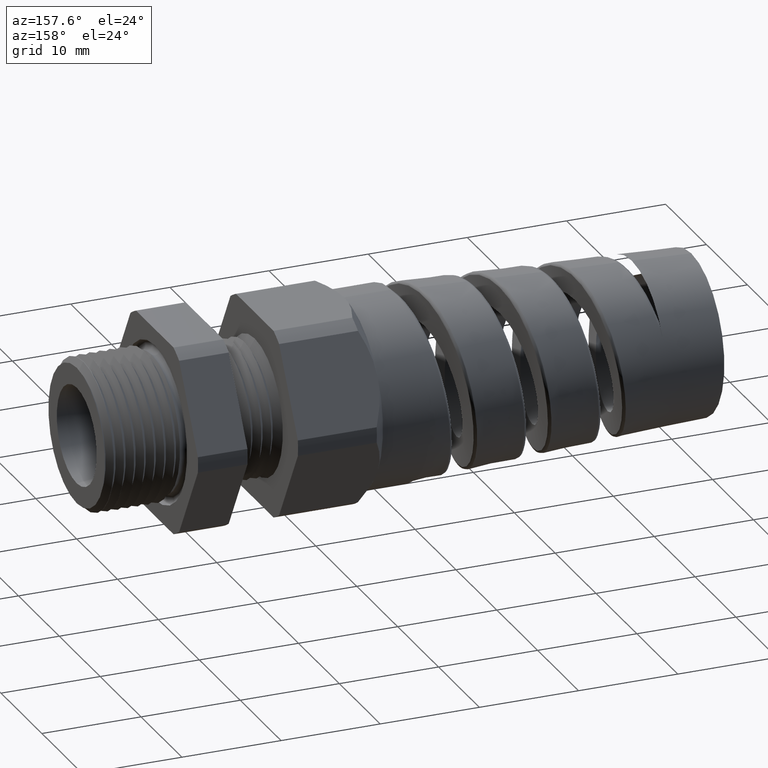
[diagram: clean part render]
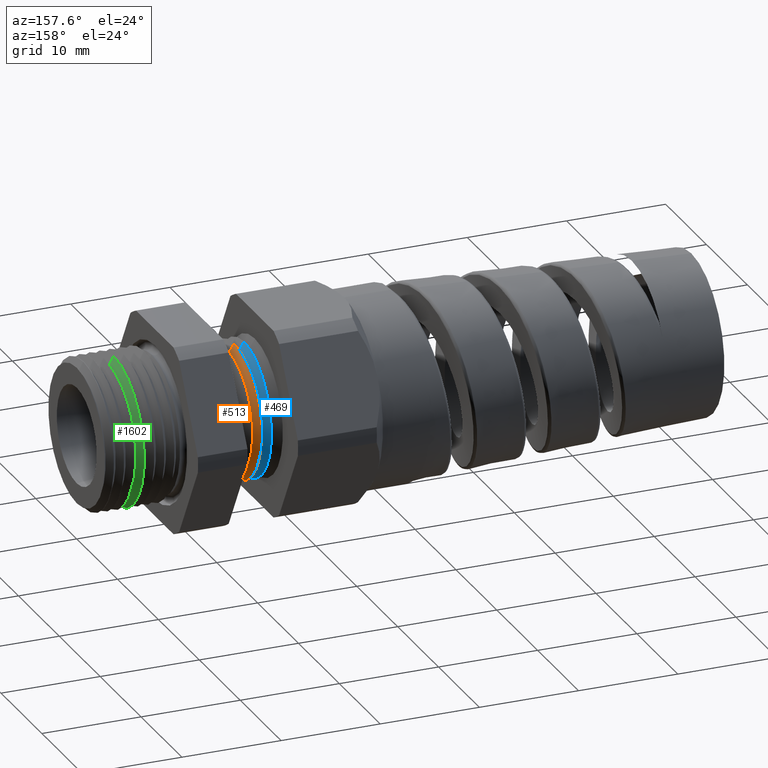
[diagram: same view with three faces highlighted in distinct colors, each labeled with its STEP entity id]
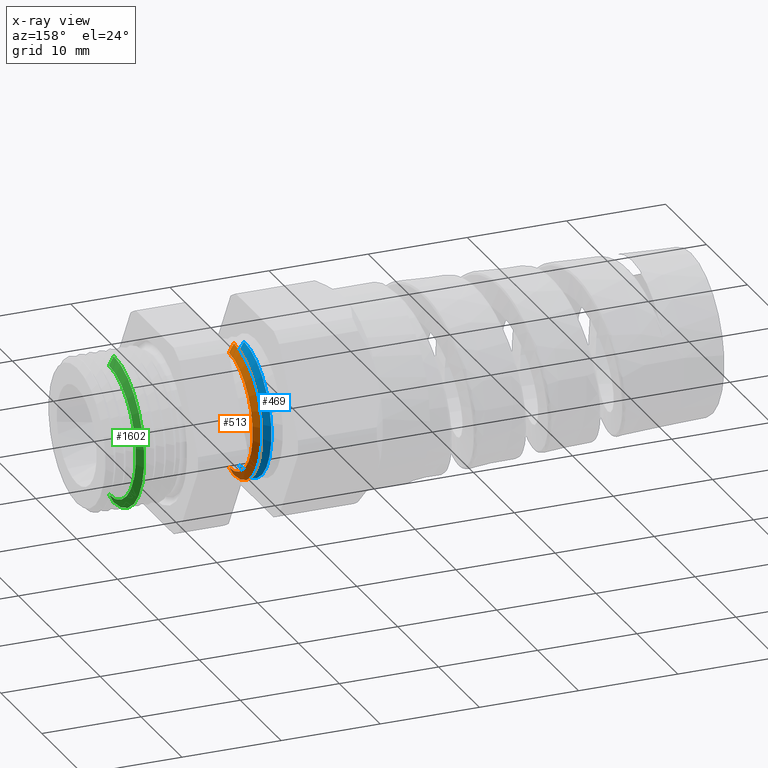
[diagram: x-ray of the same camera — body ghosted, the three highlighted faces saturated]
A machine part, auxiliary view with three faces highlighted in distinct colors.
The next image is the same camera in x-ray (body ghosted, the three faces saturated) — at least one of them is partly hidden behind the body in this view.
Their STEP definitions:

[orange] entity #513 — the highlighted conical surface has half-angle 60 deg.
#409 = EDGE_LOOP ( 'NONE', ( #514, #515, #475, #478 ) ) ;
#474 = VERTEX_POINT ( 'NONE', #5159 ) ;
#475 = ORIENTED_EDGE ( 'NONE', *, *, #476, .F. ) ;
#476 = EDGE_CURVE ( 'NONE', #477, #474, #5158, .T. ) ;
#477 = VERTEX_POINT ( 'NONE', #5153 ) ;
#478 = ORIENTED_EDGE ( 'NONE', *, *, #479, .F. ) ;
#479 = EDGE_CURVE ( 'NONE', #489, #477, #5152, .T. ) ;
#487 = EDGE_CURVE ( 'NONE', #488, #489, #5202, .T. ) ;
#488 = VERTEX_POINT ( 'NONE', #5193 ) ;
#489 = VERTEX_POINT ( 'NONE', #5192 ) ;
#513 = ADVANCED_FACE ( 'NONE', ( #5218 ), #5216, .T. ) ;
#514 = ORIENTED_EDGE ( 'NONE', *, *, #487, .F. ) ;
#515 = ORIENTED_EDGE ( 'NONE', *, *, #516, .T. ) ;
#516 = EDGE_CURVE ( 'NONE', #488, #474, #5217, .T. ) ;
#5149 = DIRECTION ( 'NONE',  ( -0.4999999999999933900, 0.0000000000000000000, 0.8660254037844423700 ) ) ;
#5150 = VECTOR ( 'NONE', #5149, 39.37007874015748100 ) ;
#5151 = CARTESIAN_POINT ( 'NONE',  ( -0.6269291338582673200, 0.0000000000000000000, 0.2699999999999999600 ) ) ;
#5152 = LINE ( 'NONE', #5151, #5150 ) ;
#5153 = CARTESIAN_POINT ( 'NONE',  ( -0.6238351230906825600, 3.240917733528876400E-017, 0.2646410161513776400 ) ) ;
#5154 = DIRECTION ( 'NONE',  ( 0.0000000000000000000, 0.0000000000000000000, 1.000000000000000000 ) ) ;
#5155 = DIRECTION ( 'NONE',  ( -1.000000000000000000, 0.0000000000000000000, 0.0000000000000000000 ) ) ;
#5156 = CARTESIAN_POINT ( 'NONE',  ( -0.6238351230906825600, 0.0000000000000000000, 0.0000000000000000000 ) ) ;
#5157 = AXIS2_PLACEMENT_3D ( 'NONE', #5156, #5155, #5154 ) ;
#5158 = CIRCLE ( 'NONE', #5157, 0.2646410161513778100 ) ;
#5159 = CARTESIAN_POINT ( 'NONE',  ( -0.6238351230906825600, 0.0000000000000000000, -0.2646410161513776400 ) ) ;
#5192 = CARTESIAN_POINT ( 'NONE',  ( -0.6038351230906827700, 0.0000000000000000000, 0.2299999999999999800 ) ) ;
#5193 = CARTESIAN_POINT ( 'NONE',  ( -0.6038351230906827700, 3.028802685783895300E-017, -0.2299999999999999800 ) ) ;
#5194 = DIRECTION ( 'NONE',  ( 0.0000000000000000000, 0.0000000000000000000, -1.000000000000000000 ) ) ;
#5195 = DIRECTION ( 'NONE',  ( 1.000000000000000000, 0.0000000000000000000, 0.0000000000000000000 ) ) ;
#5196 = CARTESIAN_POINT ( 'NONE',  ( -0.6038351230906827700, 0.0000000000000000000, 0.0000000000000000000 ) ) ;
#5197 = AXIS2_PLACEMENT_3D ( 'NONE', #5196, #5195, #5194 ) ;
#5202 = CIRCLE ( 'NONE', #5197, 0.2299999999999999800 ) ;
#5209 = DIRECTION ( 'NONE',  ( -0.4999999999999933900, 1.060575238724911700E-016, -0.8660254037844423700 ) ) ;
#5210 = VECTOR ( 'NONE', #5209, 39.37007874015748100 ) ;
#5211 = CARTESIAN_POINT ( 'NONE',  ( -0.6269291338582673200, 3.306546357697853700E-017, -0.2699999999999999600 ) ) ;
#5212 = DIRECTION ( 'NONE',  ( 0.0000000000000000000, 0.0000000000000000000, 1.000000000000000000 ) ) ;
#5213 = DIRECTION ( 'NONE',  ( -1.000000000000000000, 0.0000000000000000000, 0.0000000000000000000 ) ) ;
#5214 = CARTESIAN_POINT ( 'NONE',  ( -0.6269291338582673200, 0.0000000000000000000, 0.0000000000000000000 ) ) ;
#5215 = AXIS2_PLACEMENT_3D ( 'NONE', #5214, #5213, #5212 ) ;
#5216 = CONICAL_SURFACE ( 'NONE', #5215, 0.2699999999999999600, 1.047197551196605400 ) ;
#5217 = LINE ( 'NONE', #5211, #5210 ) ;
#5218 = FACE_OUTER_BOUND ( 'NONE', #409, .T. ) ;

[blue] entity #469 — the highlighted conical surface has half-angle 60 deg.
#448 = EDGE_CURVE ( 'NONE', #449, #450, #5094, .T. ) ;
#449 = VERTEX_POINT ( 'NONE', #5089 ) ;
#450 = VERTEX_POINT ( 'NONE', #5088 ) ;
#469 = ADVANCED_FACE ( 'NONE', ( #5171 ), #5169, .T. ) ;
#493 = ORIENTED_EDGE ( 'NONE', *, *, #604, .T. ) ;
#503 = ORIENTED_EDGE ( 'NONE', *, *, #561, .F. ) ;
#548 = ORIENTED_EDGE ( 'NONE', *, *, #448, .F. ) ;
#559 = ORIENTED_EDGE ( 'NONE', *, *, #560, .F. ) ;
#560 = EDGE_CURVE ( 'NONE', #611, #610, #5319, .T. ) ;
#561 = EDGE_CURVE ( 'NONE', #450, #611, #5310, .T. ) ;
#599 = EDGE_LOOP ( 'NONE', ( #548, #493, #559, #503 ) ) ;
#604 = EDGE_CURVE ( 'NONE', #449, #610, #5470, .T. ) ;
#610 = VERTEX_POINT ( 'NONE', #5454 ) ;
#611 = VERTEX_POINT ( 'NONE', #5453 ) ;
#5088 = CARTESIAN_POINT ( 'NONE',  ( -0.6438351230906826900, 0.0000000000000000000, 0.2299999999999999800 ) ) ;
#5089 = CARTESIAN_POINT ( 'NONE',  ( -0.6438351230906826900, 3.028802685783895300E-017, -0.2299999999999999800 ) ) ;
#5090 = DIRECTION ( 'NONE',  ( 0.0000000000000000000, 0.0000000000000000000, -1.000000000000000000 ) ) ;
#5091 = DIRECTION ( 'NONE',  ( 1.000000000000000000, 0.0000000000000000000, 0.0000000000000000000 ) ) ;
#5092 = CARTESIAN_POINT ( 'NONE',  ( -0.6438351230906826900, 0.0000000000000000000, 0.0000000000000000000 ) ) ;
#5093 = AXIS2_PLACEMENT_3D ( 'NONE', #5092, #5091, #5090 ) ;
#5094 = CIRCLE ( 'NONE', #5093, 0.2299999999999999800 ) ;
#5165 = DIRECTION ( 'NONE',  ( 0.0000000000000000000, 0.0000000000000000000, 1.000000000000000000 ) ) ;
#5166 = DIRECTION ( 'NONE',  ( -1.000000000000000000, 0.0000000000000000000, 0.0000000000000000000 ) ) ;
#5167 = CARTESIAN_POINT ( 'NONE',  ( -0.6669291338582673500, 0.0000000000000000000, 0.0000000000000000000 ) ) ;
#5168 = AXIS2_PLACEMENT_3D ( 'NONE', #5167, #5166, #5165 ) ;
#5169 = CONICAL_SURFACE ( 'NONE', #5168, 0.2699999999999999600, 1.047197551196605400 ) ;
#5171 = FACE_OUTER_BOUND ( 'NONE', #599, .T. ) ;
#5307 = DIRECTION ( 'NONE',  ( -0.4999999999999933900, 0.0000000000000000000, 0.8660254037844423700 ) ) ;
#5308 = VECTOR ( 'NONE', #5307, 39.37007874015748100 ) ;
#5309 = CARTESIAN_POINT ( 'NONE',  ( -0.6669291338582673500, 0.0000000000000000000, 0.2699999999999999600 ) ) ;
#5310 = LINE ( 'NONE', #5309, #5308 ) ;
#5311 = DIRECTION ( 'NONE',  ( 0.0000000000000000000, 0.0000000000000000000, 1.000000000000000000 ) ) ;
#5312 = DIRECTION ( 'NONE',  ( -1.000000000000000000, 0.0000000000000000000, 0.0000000000000000000 ) ) ;
#5313 = CARTESIAN_POINT ( 'NONE',  ( -0.6638351230906824900, 0.0000000000000000000, 0.0000000000000000000 ) ) ;
#5314 = AXIS2_PLACEMENT_3D ( 'NONE', #5313, #5312, #5311 ) ;
#5319 = CIRCLE ( 'NONE', #5314, 0.2646410161513778100 ) ;
#5453 = CARTESIAN_POINT ( 'NONE',  ( -0.6638351230906824900, 3.240917733528876400E-017, 0.2646410161513776400 ) ) ;
#5454 = CARTESIAN_POINT ( 'NONE',  ( -0.6638351230906824900, 0.0000000000000000000, -0.2646410161513776400 ) ) ;
#5467 = DIRECTION ( 'NONE',  ( -0.4999999999999933900, 1.060575238724911700E-016, -0.8660254037844423700 ) ) ;
#5468 = VECTOR ( 'NONE', #5467, 39.37007874015748100 ) ;
#5469 = CARTESIAN_POINT ( 'NONE',  ( -0.6669291338582673500, 3.306546357697853700E-017, -0.2699999999999999600 ) ) ;
#5470 = LINE ( 'NONE', #5469, #5468 ) ;

[green] entity #1602 — the highlighted conical surface has half-angle 61.5 deg.
#89 = EDGE_LOOP ( 'NONE', ( #1590, #7768, #7765, #6775 ) ) ;
#1590 = ORIENTED_EDGE ( 'NONE', *, *, #1597, .F. ) ;
#1596 = VERTEX_POINT ( 'NONE', #7436 ) ;
#1597 = EDGE_CURVE ( 'NONE', #1601, #1596, #7435, .T. ) ;
#1601 = VERTEX_POINT ( 'NONE', #7485 ) ;
#1602 = ADVANCED_FACE ( 'NONE', ( #7484 ), #7481, .T. ) ;
#4230 = DIRECTION ( 'NONE',  ( -1.000000000000000000, 0.0000000000000000000, 0.0000000000000000000 ) ) ;
#4231 = CARTESIAN_POINT ( 'NONE',  ( -0.1467523337684278300, 0.0000000000000000000, 0.0000000000000000000 ) ) ;
#4232 = AXIS2_PLACEMENT_3D ( 'NONE', #4231, #4230, #4294 ) ;
#4233 = CIRCLE ( 'NONE', #4232, 0.2940185428871365800 ) ;
#4234 = DIRECTION ( 'NONE',  ( -0.4771587602596069600, 0.0000000000000000000, 0.8788171126619660500 ) ) ;
#4235 = VECTOR ( 'NONE', #4234, 39.37007874015748900 ) ;
#4236 = CARTESIAN_POINT ( 'NONE',  ( -0.1499999999999998300, 0.0000000000000000000, 0.2999999999999999900 ) ) ;
#4237 = LINE ( 'NONE', #4236, #4235 ) ;
#4284 = DIRECTION ( 'NONE',  ( -0.4771587602596069600, 1.076240564057395700E-016, -0.8788171126619660500 ) ) ;
#4285 = VECTOR ( 'NONE', #4284, 39.37007874015748900 ) ;
#4286 = CARTESIAN_POINT ( 'NONE',  ( -0.1499999999999998300, 3.673940397442058900E-017, -0.2999999999999999900 ) ) ;
#4287 = LINE ( 'NONE', #4286, #4285 ) ;
#4292 = CARTESIAN_POINT ( 'NONE',  ( -0.1467523337684278300, 0.0000000000000000000, -0.2940185428871365200 ) ) ;
#4293 = CARTESIAN_POINT ( 'NONE',  ( -0.1467523337684278300, 3.600688674367005300E-017, 0.2940185428871365200 ) ) ;
#4294 = DIRECTION ( 'NONE',  ( 0.0000000000000000000, 0.0000000000000000000, 1.000000000000000000 ) ) ;
#6059 = EDGE_CURVE ( 'NONE', #1596, #7767, #4237, .T. ) ;
#6775 = ORIENTED_EDGE ( 'NONE', *, *, #6059, .F. ) ;
#7431 = DIRECTION ( 'NONE',  ( 0.0000000000000000000, 0.0000000000000000000, -1.000000000000000000 ) ) ;
#7432 = DIRECTION ( 'NONE',  ( 1.000000000000000000, 0.0000000000000000000, 0.0000000000000000000 ) ) ;
#7433 = CARTESIAN_POINT ( 'NONE',  ( -0.1279609809054341700, 0.0000000000000000000, 0.0000000000000000000 ) ) ;
#7434 = AXIS2_PLACEMENT_3D ( 'NONE', #7433, #7432, #7431 ) ;
#7435 = CIRCLE ( 'NONE', #7434, 0.2594091762748933500 ) ;
#7436 = CARTESIAN_POINT ( 'NONE',  ( -0.1279609809054341700, 0.0000000000000000000, 0.2594091762748933500 ) ) ;
#7478 = DIRECTION ( 'NONE',  ( 0.0000000000000000000, 0.0000000000000000000, 1.000000000000000000 ) ) ;
#7479 = DIRECTION ( 'NONE',  ( -1.000000000000000000, 0.0000000000000000000, 0.0000000000000000000 ) ) ;
#7480 = AXIS2_PLACEMENT_3D ( 'NONE', #7483, #7479, #7478 ) ;
#7481 = CONICAL_SURFACE ( 'NONE', #7480, 0.2999999999999999900, 1.073377489976514300 ) ;
#7483 = CARTESIAN_POINT ( 'NONE',  ( -0.1499999999999998300, 0.0000000000000000000, 0.0000000000000000000 ) ) ;
#7484 = FACE_OUTER_BOUND ( 'NONE', #89, .T. ) ;
#7485 = CARTESIAN_POINT ( 'NONE',  ( -0.1279609809054341700, 3.388767424156000600E-017, -0.2594091762748933500 ) ) ;
#7765 = ORIENTED_EDGE ( 'NONE', *, *, #7766, .F. ) ;
#7766 = EDGE_CURVE ( 'NONE', #7767, #7769, #4233, .T. ) ;
#7767 = VERTEX_POINT ( 'NONE', #4293 ) ;
#7768 = ORIENTED_EDGE ( 'NONE', *, *, #7771, .T. ) ;
#7769 = VERTEX_POINT ( 'NONE', #4292 ) ;
#7771 = EDGE_CURVE ( 'NONE', #1601, #7769, #4287, .T. ) ;